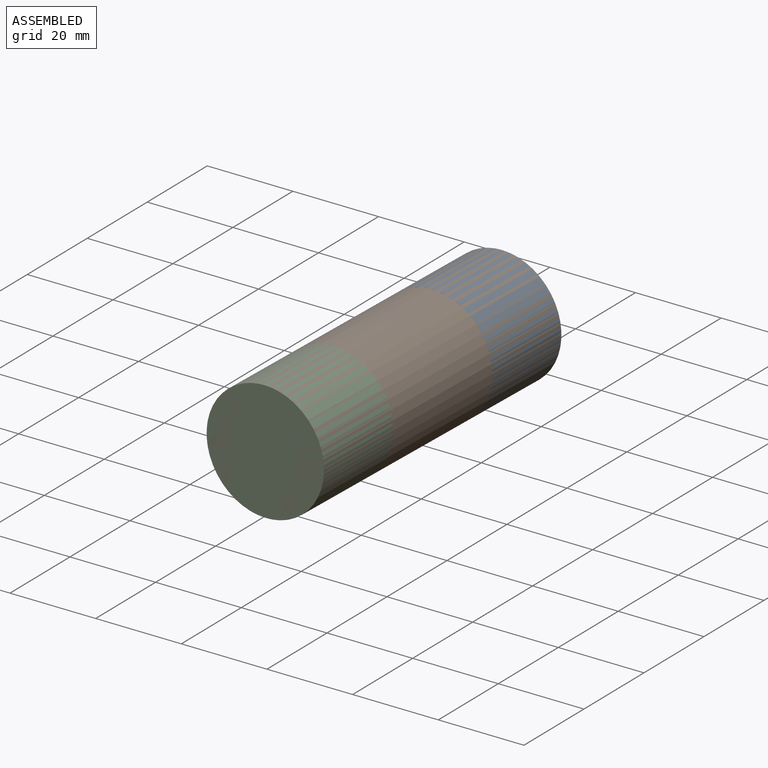
[diagram: assembled view]
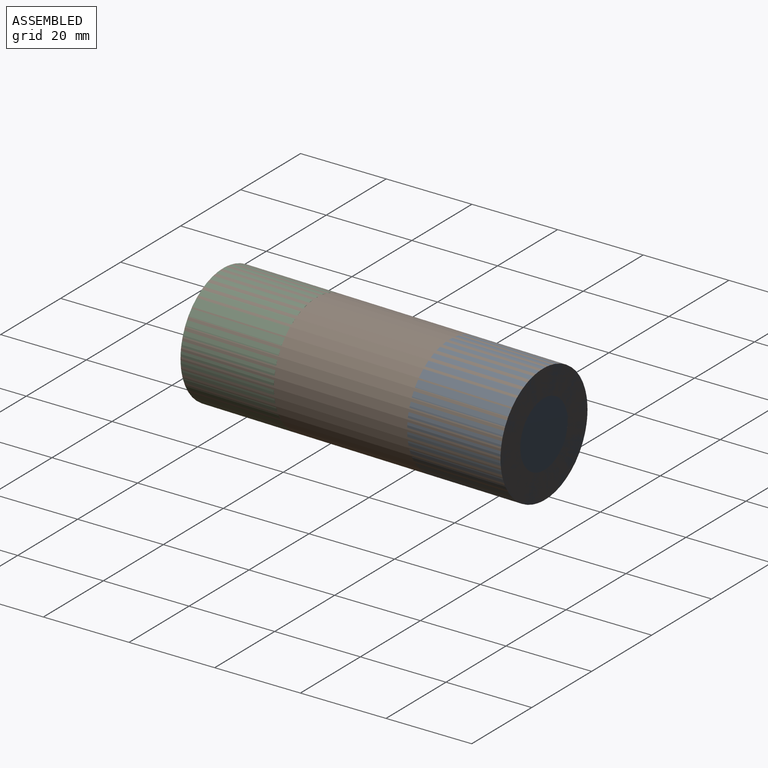
[diagram: assembled view, second angle]
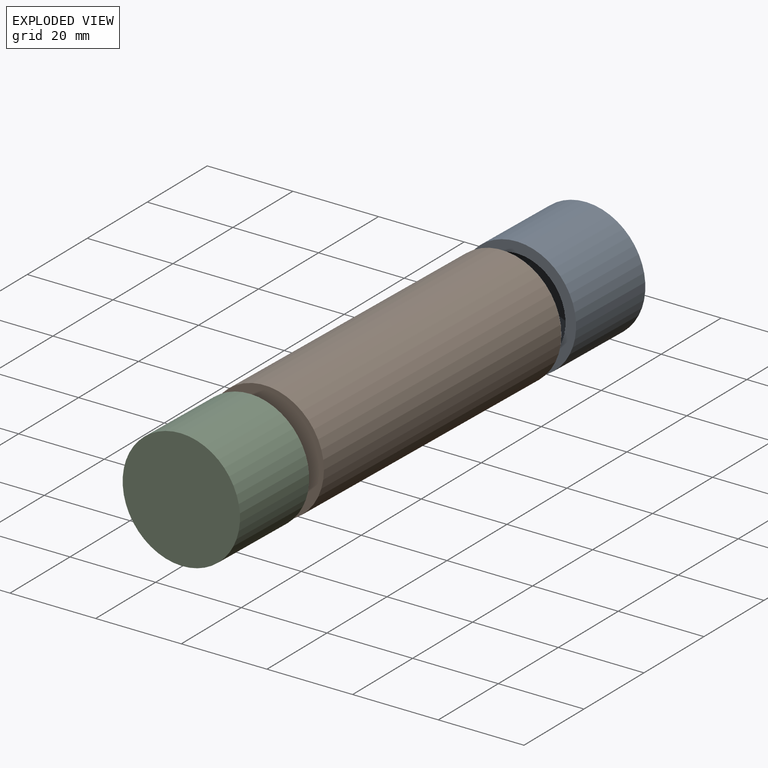
[diagram: exploded view]
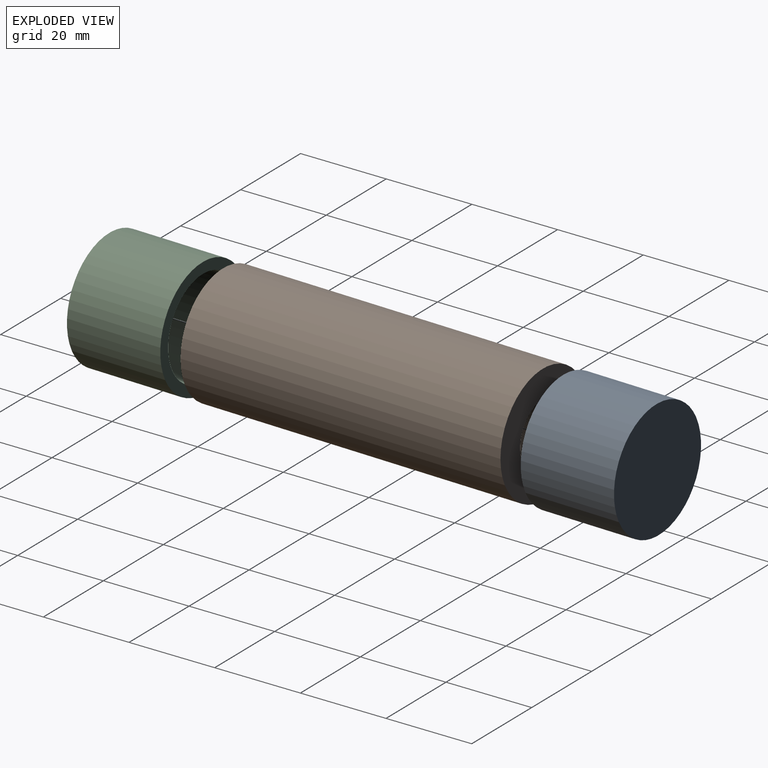
[diagram: exploded view, second angle]
ASSEMBLY  parts=3 mates=2
PART A: 5 faces, bbox 27.9x22.2x27.9 mm
  f0: cylinder r=13.97mm len=27.94mm, axis (0,1,0), area 1950.8mm2, adj f1,f2
  f1: plane 27.94x27.94mm, normal (0,-1,0), area 202.7mm2, adj f0,f3
  f2: plane 27.94x27.94mm, normal (0,1,0), area 613.1mm2, adj f0
  f3: cylinder r=11.43mm len=22.86mm, axis (0,1,0), area 1413.7mm2, adj f1,f4
  f4: plane 22.86x22.86mm, normal (0,-1,0), area 410.4mm2, adj f3
PART B: 4 faces, bbox 27.9x76.2x27.9 mm
  f0: plane 27.94x27.94mm, normal (0,1,0), area 430.7mm2, adj f2,f3
  f1: plane 27.94x27.94mm, normal (0,-1,0), area 430.7mm2, adj f2,f3
  f2: cylinder r=13.97mm len=76.2mm, axis (0,-1,0), area 6688.5mm2, adj f0,f1
  f3: cylinder r=7.62mm len=76.2mm, axis (0,-1,0), area 3648.3mm2, adj f0,f1
PART C: same geometry as A
PLACE A rot(axis=(0,0,-1),1.6deg) t=(4.17,89.78,-20.04)mm
PLACE B rot(axis=(0.01,1,-0.01),90deg) t=(3.12,51.7,-20.04)mm
PLACE C rot(axis=(0,0,1),178.4deg) t=(2.07,13.61,-20.04)mm
MATE revolute B.f2 <-> C.f0  axis (-0.03,-1,0) through (2.07,13.61,-20.04)mm
MATE fastened A.f0 <-> B.f2  axis (0.03,1,0) through (4.17,89.78,-20.04)mm
